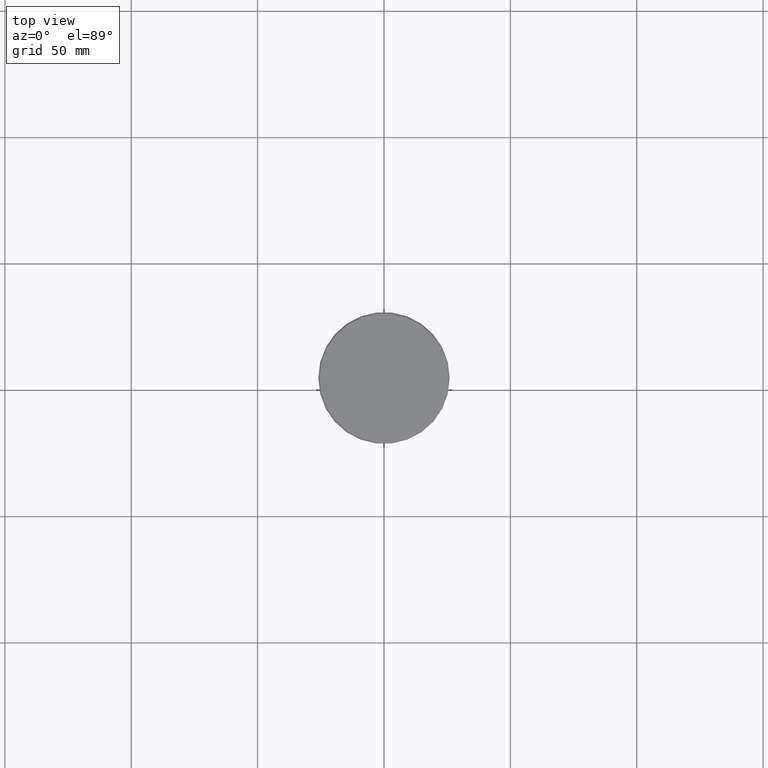
[diagram: clean part render]
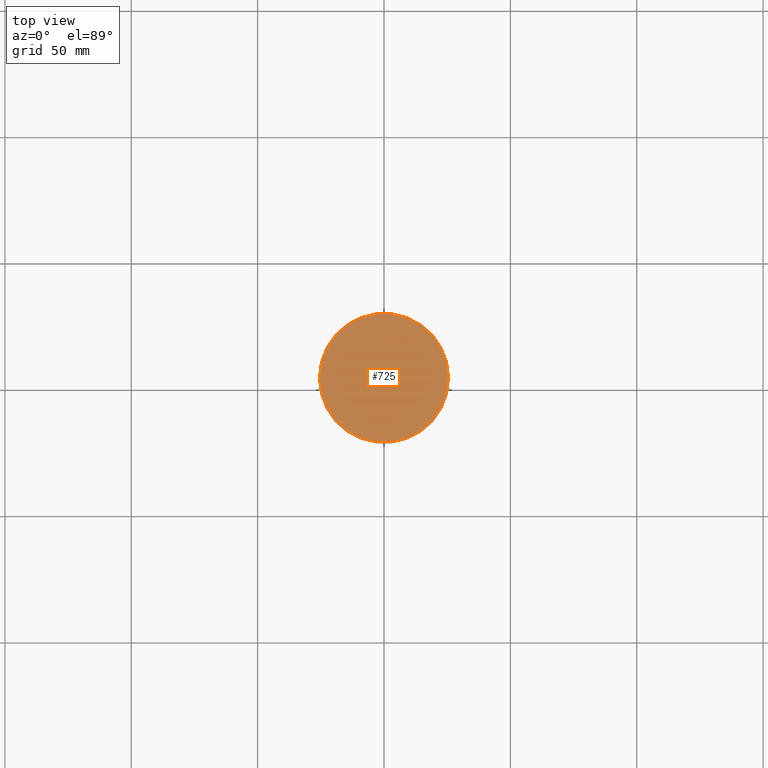
[diagram: same view with one face highlighted and labeled with its STEP entity id]
A machine part, top view. The second image highlights one B-rep face of the part: STEP entity #725.
In plain terms, the highlighted planar face has unit normal (0, -0, 1).
Its self-contained STEP definition (entity closure, byte-faithful):
#112 = ORIENTED_EDGE ( 'NONE', *, *, #1028, .T. ) ;
#166 = AXIS2_PLACEMENT_3D ( 'NONE', #837, #580, #947 ) ;
#184 = CIRCLE ( 'NONE', #966, 25.49999999999994316 ) ;
#255 = CARTESIAN_POINT ( 'NONE',  ( 0.000000000000000000, 0.000000000000000000, 0.000000000000000000 ) ) ;
#342 = EDGE_LOOP ( 'NONE', ( #112, #1036 ) ) ;
#352 = DIRECTION ( 'NONE',  ( 1.000000000000000000, 0.000000000000000000, 0.000000000000000000 ) ) ;
#379 = VERTEX_POINT ( 'NONE', #408 ) ;
#400 = EDGE_CURVE ( 'NONE', #379, #466, #184, .T. ) ;
#408 = CARTESIAN_POINT ( 'NONE',  ( 25.49999999999994316, 3.153465507804430854E-15, 0.000000000000000000 ) ) ;
#423 = CARTESIAN_POINT ( 'NONE',  ( -25.49999999999994316, 0.000000000000000000, 0.000000000000000000 ) ) ;
#466 = VERTEX_POINT ( 'NONE', #423 ) ;
#469 = PLANE ( 'NONE',  #166 ) ;
#580 = DIRECTION ( 'NONE',  ( 0.000000000000000000, -0.000000000000000000, 1.000000000000000000 ) ) ;
#637 = DIRECTION ( 'NONE',  ( -0.000000000000000000, -0.000000000000000000, 1.000000000000000000 ) ) ;
#646 = AXIS2_PLACEMENT_3D ( 'NONE', #1171, #637, #352 ) ;
#725 = ADVANCED_FACE ( 'NONE', ( #926 ), #469, .T. ) ;
#778 = DIRECTION ( 'NONE',  ( -0.000000000000000000, -0.000000000000000000, 1.000000000000000000 ) ) ;
#837 = CARTESIAN_POINT ( 'NONE',  ( 0.000000000000000000, 0.000000000000000000, 0.000000000000000000 ) ) ;
#882 = DIRECTION ( 'NONE',  ( 1.000000000000000000, 0.000000000000000000, 0.000000000000000000 ) ) ;
#926 = FACE_OUTER_BOUND ( 'NONE', #342, .T. ) ;
#947 = DIRECTION ( 'NONE',  ( 1.000000000000000000, 0.000000000000000000, 0.000000000000000000 ) ) ;
#966 = AXIS2_PLACEMENT_3D ( 'NONE', #255, #778, #882 ) ;
#1028 = EDGE_CURVE ( 'NONE', #466, #379, #1157, .T. ) ;
#1036 = ORIENTED_EDGE ( 'NONE', *, *, #400, .T. ) ;
#1157 = CIRCLE ( 'NONE', #646, 25.49999999999994316 ) ;
#1171 = CARTESIAN_POINT ( 'NONE',  ( 0.000000000000000000, 0.000000000000000000, 0.000000000000000000 ) ) ;